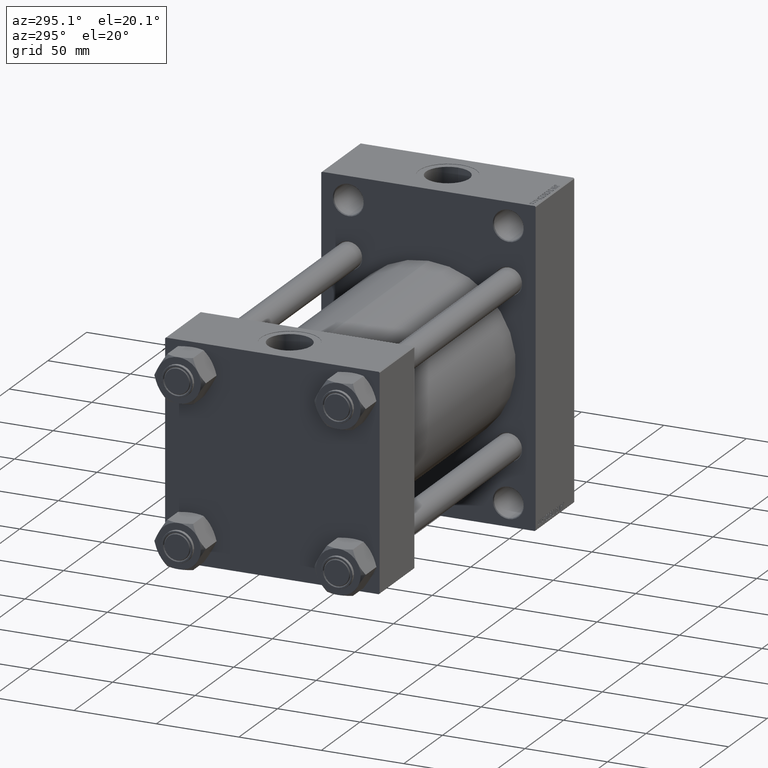
[diagram: clean part render]
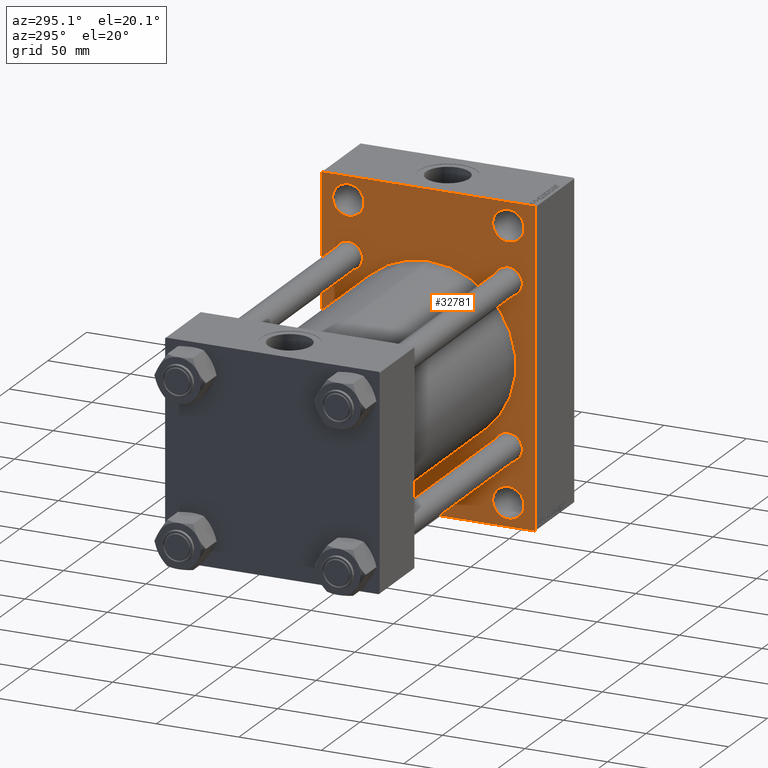
[diagram: same view with one face highlighted and labeled with its STEP entity id]
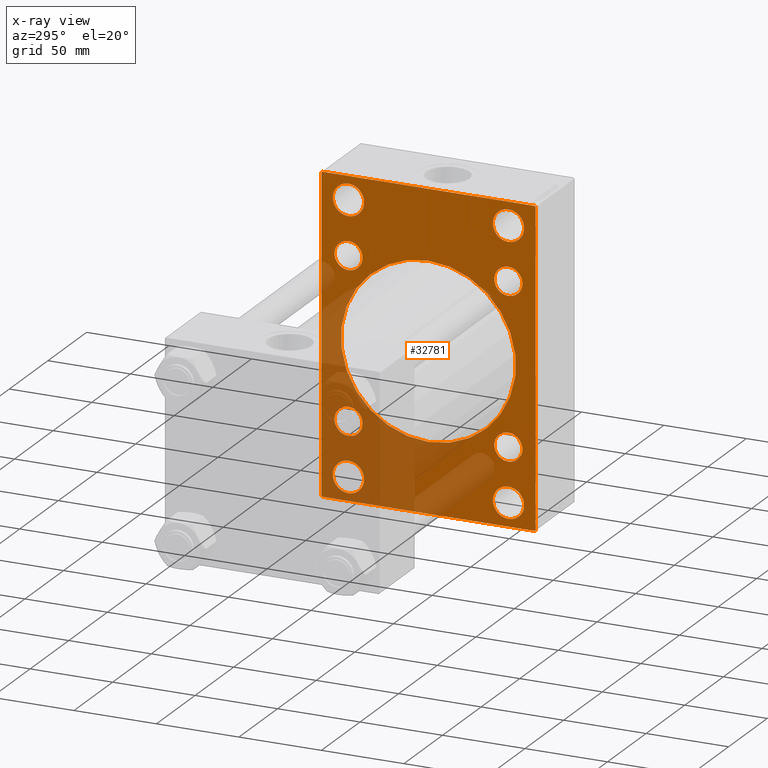
[diagram: x-ray of the same camera — body ghosted, the highlighted face saturated]
A machine part, auxiliary view. The second image highlights one B-rep face of the part: STEP entity #32781.
The next image is the same camera in x-ray: the body ghosted, the highlighted face saturated — about 34% of this face is hidden behind the body in this view.
In plain terms, the highlighted planar face has unit normal (-1, 0, 0).
Its self-contained STEP definition (entity closure, byte-faithful):
#66 = PLANE ( 'NONE',  #21896 ) ;
#522 = CARTESIAN_POINT ( 'NONE',  ( 202.0000000000000000, -48.50000000000000000, 71.49999999999994316 ) ) ;
#717 = EDGE_CURVE ( 'NONE', #2707, #1235, #21013, .T. ) ;
#1067 = EDGE_CURVE ( 'NONE', #33734, #47166, #6343, .T. ) ;
#1154 = DIRECTION ( 'NONE',  ( 0.000000000000000000, 0.000000000000000000, 1.000000000000000000 ) ) ;
#1235 = VERTEX_POINT ( 'NONE', #1373 ) ;
#1373 = CARTESIAN_POINT ( 'NONE',  ( 202.0000000000000000, 48.45000000000000995, -39.95000000000000284 ) ) ;
#1495 = DIRECTION ( 'NONE',  ( 0.000000000000000000, 0.000000000000000000, -1.000000000000000000 ) ) ;
#1510 = ORIENTED_EDGE ( 'NONE', *, *, #8073, .T. ) ;
#1534 = AXIS2_PLACEMENT_3D ( 'NONE', #17695, #14540, #47370 ) ;
#1734 = CARTESIAN_POINT ( 'NONE',  ( 202.0000000000000000, -48.44999999999999574, -48.45000000000003126 ) ) ;
#2065 = EDGE_CURVE ( 'NONE', #4177, #5963, #19398, .T. ) ;
#2171 = DIRECTION ( 'NONE',  ( 1.000000000000000000, -0.000000000000000000, 0.000000000000000000 ) ) ;
#2225 = VERTEX_POINT ( 'NONE', #16586 ) ;
#2446 = DIRECTION ( 'NONE',  ( 0.000000000000000000, 0.000000000000000000, 1.000000000000000000 ) ) ;
#2495 = CARTESIAN_POINT ( 'NONE',  ( 202.0000000000000000, 79.75000000000001421, 79.75000000000001421 ) ) ;
#2645 = DIRECTION ( 'NONE',  ( 0.000000000000000000, 0.000000000000000000, 1.000000000000000000 ) ) ;
#2707 = VERTEX_POINT ( 'NONE', #19620 ) ;
#2881 = DIRECTION ( 'NONE',  ( 0.000000000000000000, -1.000000000000000000, -1.067522139062650425E-16 ) ) ;
#3301 = DIRECTION ( 'NONE',  ( 0.000000000000000000, 0.000000000000000000, 1.000000000000000000 ) ) ;
#3687 = ORIENTED_EDGE ( 'NONE', *, *, #23402, .T. ) ;
#4177 = VERTEX_POINT ( 'NONE', #522 ) ;
#4230 = EDGE_LOOP ( 'NONE', ( #30158, #19047 ) ) ;
#4304 = AXIS2_PLACEMENT_3D ( 'NONE', #38684, #5610, #20346 ) ;
#4309 = AXIS2_PLACEMENT_3D ( 'NONE', #10200, #44714, #11631 ) ;
#4648 = CARTESIAN_POINT ( 'NONE',  ( 202.0000000000000000, -48.50000000000000000, 90.50000000000007105 ) ) ;
#5083 = CIRCLE ( 'NONE', #4309, 8.500000000000007105 ) ;
#5326 = AXIS2_PLACEMENT_3D ( 'NONE', #41561, #8252, #15494 ) ;
#5436 = VERTEX_POINT ( 'NONE', #43416 ) ;
#5564 = LINE ( 'NONE', #13049, #44987 ) ;
#5610 = DIRECTION ( 'NONE',  ( 1.000000000000000000, 0.000000000000000000, 0.000000000000000000 ) ) ;
#5963 = VERTEX_POINT ( 'NONE', #4648 ) ;
#6061 = DIRECTION ( 'NONE',  ( 0.000000000000000000, 0.000000000000000000, 1.000000000000000000 ) ) ;
#6068 = CARTESIAN_POINT ( 'NONE',  ( 202.0000000000000000, -48.44999999999999574, -48.45000000000003126 ) ) ;
#6282 = CARTESIAN_POINT ( 'NONE',  ( 202.0000000000000000, -2.602085213965210642E-15, 0.000000000000000000 ) ) ;
#6343 = CIRCLE ( 'NONE', #40245, 8.500000000000007105 ) ;
#6479 = ORIENTED_EDGE ( 'NONE', *, *, #32196, .T. ) ;
#6528 = CARTESIAN_POINT ( 'NONE',  ( 202.0000000000000000, 48.50000000000000711, -81.00000000000001421 ) ) ;
#6754 = EDGE_CURVE ( 'NONE', #10583, #47644, #27081, .T. ) ;
#6822 = CARTESIAN_POINT ( 'NONE',  ( 202.0000000000000000, -48.50000000000000000, 81.00000000000000000 ) ) ;
#6838 = ORIENTED_EDGE ( 'NONE', *, *, #2065, .T. ) ;
#7179 = DIRECTION ( 'NONE',  ( 0.000000000000000000, 0.000000000000000000, 1.000000000000000000 ) ) ;
#7405 = CARTESIAN_POINT ( 'NONE',  ( 202.0000000000000000, -48.50000000000000000, 81.00000000000000000 ) ) ;
#7550 = DIRECTION ( 'NONE',  ( -1.000000000000000000, 0.000000000000000000, -0.000000000000000000 ) ) ;
#7756 = VERTEX_POINT ( 'NONE', #10442 ) ;
#7798 = FACE_BOUND ( 'NONE', #34818, .T. ) ;
#7914 = DIRECTION ( 'NONE',  ( 1.000000000000000000, -0.000000000000000000, 0.000000000000000000 ) ) ;
#8073 = EDGE_CURVE ( 'NONE', #7756, #5436, #28909, .T. ) ;
#8115 = AXIS2_PLACEMENT_3D ( 'NONE', #1734, #7914, #7179 ) ;
#8252 = DIRECTION ( 'NONE',  ( 1.000000000000000000, -0.000000000000000000, 0.000000000000000000 ) ) ;
#8364 = DIRECTION ( 'NONE',  ( 0.000000000000000000, 0.000000000000000000, 1.000000000000000000 ) ) ;
#8526 = FACE_BOUND ( 'NONE', #20284, .T. ) ;
#8915 = CARTESIAN_POINT ( 'NONE',  ( 202.0000000000000000, 48.50000000000000711, 90.50000000000007105 ) ) ;
#9077 = AXIS2_PLACEMENT_3D ( 'NONE', #35976, #21257, #6061 ) ;
#9121 = EDGE_CURVE ( 'NONE', #2225, #35926, #35561, .T. ) ;
#9430 = CARTESIAN_POINT ( 'NONE',  ( 202.0000000000000000, 64.99999999999998579, -95.00000000000001421 ) ) ;
#9806 = CARTESIAN_POINT ( 'NONE',  ( 202.0000000000000000, -48.49999999999999289, -71.49999999999995737 ) ) ;
#9865 = DIRECTION ( 'NONE',  ( 0.000000000000000000, -0.7071067811865474617, 0.7071067811865474617 ) ) ;
#10064 = CIRCLE ( 'NONE', #45556, 8.500000000000007105 ) ;
#10084 = DIRECTION ( 'NONE',  ( 0.000000000000000000, 0.000000000000000000, 1.000000000000000000 ) ) ;
#10162 = ORIENTED_EDGE ( 'NONE', *, *, #35420, .T. ) ;
#10200 = CARTESIAN_POINT ( 'NONE',  ( 202.0000000000000000, 48.45000000000000995, 48.45000000000001705 ) ) ;
#10442 = CARTESIAN_POINT ( 'NONE',  ( 202.0000000000000000, -48.44999999999999574, -39.95000000000001705 ) ) ;
#10583 = VERTEX_POINT ( 'NONE', #26676 ) ;
#10711 = ORIENTED_EDGE ( 'NONE', *, *, #31790, .T. ) ;
#11631 = DIRECTION ( 'NONE',  ( 0.000000000000000000, 0.000000000000000000, 1.000000000000000000 ) ) ;
#11905 = FACE_BOUND ( 'NONE', #23263, .T. ) ;
#11976 = DIRECTION ( 'NONE',  ( 1.000000000000000000, -0.000000000000000000, 0.000000000000000000 ) ) ;
#12107 = ORIENTED_EDGE ( 'NONE', *, *, #33910, .F. ) ;
#12317 = VERTEX_POINT ( 'NONE', #32342 ) ;
#12331 = EDGE_CURVE ( 'NONE', #12317, #34603, #41442, .T. ) ;
#12456 = DIRECTION ( 'NONE',  ( 1.000000000000000000, -0.000000000000000000, 0.000000000000000000 ) ) ;
#13049 = CARTESIAN_POINT ( 'NONE',  ( 202.0000000000000000, 64.99999999999997158, 94.99999999999997158 ) ) ;
#13073 = CARTESIAN_POINT ( 'NONE',  ( 202.0000000000000000, -65.00000000000001421, 94.99999999999997158 ) ) ;
#13263 = EDGE_CURVE ( 'NONE', #31977, #46188, #17554, .T. ) ;
#13668 = DIRECTION ( 'NONE',  ( 0.000000000000000000, 7.304098846218135653E-17, -1.000000000000000000 ) ) ;
#14076 = DIRECTION ( 'NONE',  ( 1.000000000000000000, -0.000000000000000000, 0.000000000000000000 ) ) ;
#14246 = ORIENTED_EDGE ( 'NONE', *, *, #46861, .T. ) ;
#14536 = CIRCLE ( 'NONE', #26891, 9.500000000000063949 ) ;
#14540 = DIRECTION ( 'NONE',  ( 1.000000000000000000, -0.000000000000000000, 0.000000000000000000 ) ) ;
#14551 = DIRECTION ( 'NONE',  ( 0.000000000000000000, 0.000000000000000000, 1.000000000000000000 ) ) ;
#14822 = EDGE_CURVE ( 'NONE', #1235, #2707, #24507, .T. ) ;
#15310 = AXIS2_PLACEMENT_3D ( 'NONE', #6822, #24472, #39198 ) ;
#15380 = VECTOR ( 'NONE', #20845, 1000.000000000000000 ) ;
#15494 = DIRECTION ( 'NONE',  ( 0.000000000000000000, 0.000000000000000000, 1.000000000000000000 ) ) ;
#15607 = CARTESIAN_POINT ( 'NONE',  ( 202.0000000000000000, 48.45000000000000995, -48.45000000000001705 ) ) ;
#16030 = ORIENTED_EDGE ( 'NONE', *, *, #46979, .T. ) ;
#16116 = VECTOR ( 'NONE', #2881, 1000.000000000000000 ) ;
#16486 = EDGE_CURVE ( 'NONE', #23379, #29303, #39221, .T. ) ;
#16586 = CARTESIAN_POINT ( 'NONE',  ( 202.0000000000000000, 64.50000000000008527, 94.99999999999997158 ) ) ;
#16925 = DIRECTION ( 'NONE',  ( 0.000000000000000000, 0.000000000000000000, 1.000000000000000000 ) ) ;
#17387 = CARTESIAN_POINT ( 'NONE',  ( 202.0000000000000000, 48.50000000000000711, 81.00000000000000000 ) ) ;
#17554 = CIRCLE ( 'NONE', #9077, 8.500000000000007105 ) ;
#17695 = CARTESIAN_POINT ( 'NONE',  ( 202.0000000000000000, -48.44999999999999574, 48.45000000000003126 ) ) ;
#17702 = CARTESIAN_POINT ( 'NONE',  ( 202.0000000000000000, 48.50000000000000711, 81.00000000000000000 ) ) ;
#17787 = CIRCLE ( 'NONE', #22392, 9.500000000000063949 ) ;
#17899 = VERTEX_POINT ( 'NONE', #8915 ) ;
#18135 = DIRECTION ( 'NONE',  ( -0.000000000000000000, 0.7071067811865769936, 0.7071067811865181518 ) ) ;
#18520 = DIRECTION ( 'NONE',  ( 1.000000000000000000, -0.000000000000000000, 0.000000000000000000 ) ) ;
#18556 = CARTESIAN_POINT ( 'NONE',  ( 202.0000000000000000, 48.45000000000000995, 39.95000000000000284 ) ) ;
#18877 = EDGE_CURVE ( 'NONE', #47166, #33734, #40068, .T. ) ;
#19047 = ORIENTED_EDGE ( 'NONE', *, *, #40111, .T. ) ;
#19395 = FACE_BOUND ( 'NONE', #37473, .T. ) ;
#19398 = CIRCLE ( 'NONE', #42509, 9.500000000000063949 ) ;
#19620 = CARTESIAN_POINT ( 'NONE',  ( 202.0000000000000000, 48.45000000000000995, -56.95000000000002416 ) ) ;
#19835 = VERTEX_POINT ( 'NONE', #32725 ) ;
#20229 = CARTESIAN_POINT ( 'NONE',  ( 202.0000000000000000, -64.50000000000002842, 94.99999999999997158 ) ) ;
#20265 = CARTESIAN_POINT ( 'NONE',  ( 202.0000000000000000, -48.44999999999999574, 48.45000000000003126 ) ) ;
#20284 = EDGE_LOOP ( 'NONE', ( #24011, #42724 ) ) ;
#20346 = DIRECTION ( 'NONE',  ( 0.000000000000000000, 0.000000000000000000, -1.000000000000000000 ) ) ;
#20777 = ORIENTED_EDGE ( 'NONE', *, *, #44563, .T. ) ;
#20845 = DIRECTION ( 'NONE',  ( -0.000000000000000000, -0.7071067811865573427, -0.7071067811865378028 ) ) ;
#21013 = CIRCLE ( 'NONE', #36383, 8.500000000000007105 ) ;
#21020 = EDGE_CURVE ( 'NONE', #43782, #19835, #27603, .T. ) ;
#21257 = DIRECTION ( 'NONE',  ( 1.000000000000000000, -0.000000000000000000, 0.000000000000000000 ) ) ;
#21439 = AXIS2_PLACEMENT_3D ( 'NONE', #15607, #11976, #8364 ) ;
#21668 = VERTEX_POINT ( 'NONE', #24104 ) ;
#21896 = AXIS2_PLACEMENT_3D ( 'NONE', #36996, #7550, #37972 ) ;
#22356 = VECTOR ( 'NONE', #13668, 1000.000000000000000 ) ;
#22392 = AXIS2_PLACEMENT_3D ( 'NONE', #6528, #27457, #1154 ) ;
#22523 = FACE_BOUND ( 'NONE', #26054, .T. ) ;
#22943 = DIRECTION ( 'NONE',  ( 1.000000000000000000, -0.000000000000000000, 0.000000000000000000 ) ) ;
#23097 = EDGE_CURVE ( 'NONE', #26195, #47644, #43174, .T. ) ;
#23256 = FACE_BOUND ( 'NONE', #29907, .T. ) ;
#23263 = EDGE_LOOP ( 'NONE', ( #25823, #10162 ) ) ;
#23379 = VERTEX_POINT ( 'NONE', #9806 ) ;
#23402 = EDGE_CURVE ( 'NONE', #35926, #43782, #24764, .T. ) ;
#23874 = EDGE_CURVE ( 'NONE', #5436, #7756, #10064, .T. ) ;
#24011 = ORIENTED_EDGE ( 'NONE', *, *, #14822, .T. ) ;
#24104 = CARTESIAN_POINT ( 'NONE',  ( 202.0000000000000000, 48.50000000000000711, 71.49999999999994316 ) ) ;
#24158 = EDGE_CURVE ( 'NONE', #44631, #33062, #17787, .T. ) ;
#24251 = DIRECTION ( 'NONE',  ( 0.000000000000000000, 0.000000000000000000, 1.000000000000000000 ) ) ;
#24254 = VERTEX_POINT ( 'NONE', #20229 ) ;
#24472 = DIRECTION ( 'NONE',  ( 1.000000000000000000, -0.000000000000000000, 0.000000000000000000 ) ) ;
#24507 = CIRCLE ( 'NONE', #21439, 8.500000000000007105 ) ;
#24764 = LINE ( 'NONE', #39713, #22356 ) ;
#25823 = ORIENTED_EDGE ( 'NONE', *, *, #13263, .T. ) ;
#25857 = VECTOR ( 'NONE', #31938, 1000.000000000000114 ) ;
#25949 = EDGE_LOOP ( 'NONE', ( #14246, #47159, #33693, #20777, #12107, #45301, #3687, #41488 ) ) ;
#26054 = EDGE_LOOP ( 'NONE', ( #36223, #34808 ) ) ;
#26058 = DIRECTION ( 'NONE',  ( 0.000000000000000000, 0.000000000000000000, 1.000000000000000000 ) ) ;
#26195 = VERTEX_POINT ( 'NONE', #26290 ) ;
#26290 = CARTESIAN_POINT ( 'NONE',  ( 202.0000000000000000, -64.50000000000001421, -95.00000000000002842 ) ) ;
#26315 = ORIENTED_EDGE ( 'NONE', *, *, #16486, .T. ) ;
#26676 = CARTESIAN_POINT ( 'NONE',  ( 202.0000000000000000, -65.00000000000001421, 94.50000000000002842 ) ) ;
#26891 = AXIS2_PLACEMENT_3D ( 'NONE', #17387, #28244, #16925 ) ;
#27081 = LINE ( 'NONE', #13073, #29669 ) ;
#27196 = AXIS2_PLACEMENT_3D ( 'NONE', #39801, #2171, #2645 ) ;
#27457 = DIRECTION ( 'NONE',  ( 1.000000000000000000, -0.000000000000000000, 0.000000000000000000 ) ) ;
#27567 = DIRECTION ( 'NONE',  ( 1.000000000000000000, -0.000000000000000000, 0.000000000000000000 ) ) ;
#27603 = LINE ( 'NONE', #46663, #15380 ) ;
#27770 = DIRECTION ( 'NONE',  ( 0.000000000000000000, -1.000000000000000000, 0.000000000000000000 ) ) ;
#27985 = AXIS2_PLACEMENT_3D ( 'NONE', #33547, #22943, #26058 ) ;
#28244 = DIRECTION ( 'NONE',  ( 1.000000000000000000, -0.000000000000000000, 0.000000000000000000 ) ) ;
#28490 = DIRECTION ( 'NONE',  ( 0.000000000000000000, 0.000000000000000000, -1.000000000000000000 ) ) ;
#28728 = EDGE_CURVE ( 'NONE', #29303, #23379, #41849, .T. ) ;
#28792 = CIRCLE ( 'NONE', #39618, 9.500000000000063949 ) ;
#28909 = CIRCLE ( 'NONE', #8115, 8.500000000000007105 ) ;
#29303 = VERTEX_POINT ( 'NONE', #45555 ) ;
#29669 = VECTOR ( 'NONE', #1495, 1000.000000000000000 ) ;
#29705 = CARTESIAN_POINT ( 'NONE',  ( 202.0000000000000000, -48.44999999999999574, 39.95000000000001705 ) ) ;
#29907 = EDGE_LOOP ( 'NONE', ( #42421, #6479 ) ) ;
#30158 = ORIENTED_EDGE ( 'NONE', *, *, #12331, .T. ) ;
#30399 = CIRCLE ( 'NONE', #27985, 9.500000000000063949 ) ;
#30490 = FACE_BOUND ( 'NONE', #43317, .T. ) ;
#31790 = EDGE_CURVE ( 'NONE', #21668, #17899, #28792, .T. ) ;
#31938 = DIRECTION ( 'NONE',  ( 0.000000000000000000, 0.7071067811865474617, -0.7071067811865474617 ) ) ;
#31977 = VERTEX_POINT ( 'NONE', #38198 ) ;
#32196 = EDGE_CURVE ( 'NONE', #33062, #44631, #30399, .T. ) ;
#32342 = CARTESIAN_POINT ( 'NONE',  ( 202.0000000000000000, -2.602085213965210642E-15, 53.00000000000000711 ) ) ;
#32725 = CARTESIAN_POINT ( 'NONE',  ( 202.0000000000000000, 64.49999999999998579, -95.00000000000001421 ) ) ;
#32781 = ADVANCED_FACE ( 'NONE', ( #40616, #7798, #23256, #30490, #22523, #11905, #8526, #19395, #37727, #33375 ), #66, .T. ) ;
#33062 = VERTEX_POINT ( 'NONE', #35005 ) ;
#33375 = FACE_OUTER_BOUND ( 'NONE', #25949, .T. ) ;
#33547 = CARTESIAN_POINT ( 'NONE',  ( 202.0000000000000000, 48.50000000000000711, -81.00000000000001421 ) ) ;
#33693 = ORIENTED_EDGE ( 'NONE', *, *, #6754, .F. ) ;
#33734 = VERTEX_POINT ( 'NONE', #29705 ) ;
#33910 = EDGE_CURVE ( 'NONE', #2225, #24254, #5564, .T. ) ;
#34276 = EDGE_LOOP ( 'NONE', ( #35372, #6838 ) ) ;
#34577 = CIRCLE ( 'NONE', #15310, 9.500000000000063949 ) ;
#34603 = VERTEX_POINT ( 'NONE', #35547 ) ;
#34808 = ORIENTED_EDGE ( 'NONE', *, *, #1067, .T. ) ;
#34818 = EDGE_LOOP ( 'NONE', ( #26315, #42142 ) ) ;
#34976 = DIRECTION ( 'NONE',  ( 1.000000000000000000, -0.000000000000000000, 0.000000000000000000 ) ) ;
#35005 = CARTESIAN_POINT ( 'NONE',  ( 202.0000000000000000, 48.50000000000000711, -90.50000000000008527 ) ) ;
#35159 = CIRCLE ( 'NONE', #4304, 53.00000000000000711 ) ;
#35355 = CARTESIAN_POINT ( 'NONE',  ( 202.0000000000000000, 48.45000000000000995, -48.45000000000001705 ) ) ;
#35372 = ORIENTED_EDGE ( 'NONE', *, *, #45393, .T. ) ;
#35420 = EDGE_CURVE ( 'NONE', #46188, #31977, #5083, .T. ) ;
#35547 = CARTESIAN_POINT ( 'NONE',  ( 202.0000000000000000, 3.888542821515762466E-15, -53.00000000000000711 ) ) ;
#35561 = LINE ( 'NONE', #2495, #25857 ) ;
#35926 = VERTEX_POINT ( 'NONE', #47253 ) ;
#35976 = CARTESIAN_POINT ( 'NONE',  ( 202.0000000000000000, 48.45000000000000995, 48.45000000000001705 ) ) ;
#36223 = ORIENTED_EDGE ( 'NONE', *, *, #18877, .T. ) ;
#36383 = AXIS2_PLACEMENT_3D ( 'NONE', #35355, #12456, #24251 ) ;
#36470 = CARTESIAN_POINT ( 'NONE',  ( 202.0000000000000000, -79.74999999999732836, 79.75000000000395062 ) ) ;
#36996 = CARTESIAN_POINT ( 'NONE',  ( 202.0000000000000000, 0.000000000000000000, 0.000000000000000000 ) ) ;
#37274 = CARTESIAN_POINT ( 'NONE',  ( 202.0000000000000000, -65.00000000000001421, -94.50000000000002842 ) ) ;
#37473 = EDGE_LOOP ( 'NONE', ( #1510, #45128 ) ) ;
#37727 = FACE_BOUND ( 'NONE', #4230, .T. ) ;
#37972 = DIRECTION ( 'NONE',  ( -0.000000000000000000, 0.000000000000000000, 1.000000000000000000 ) ) ;
#38198 = CARTESIAN_POINT ( 'NONE',  ( 202.0000000000000000, 48.45000000000000995, 56.95000000000002416 ) ) ;
#38684 = CARTESIAN_POINT ( 'NONE',  ( 202.0000000000000000, -2.602085213965210642E-15, 0.000000000000000000 ) ) ;
#39198 = DIRECTION ( 'NONE',  ( 0.000000000000000000, 0.000000000000000000, 1.000000000000000000 ) ) ;
#39221 = CIRCLE ( 'NONE', #5326, 9.500000000000063949 ) ;
#39618 = AXIS2_PLACEMENT_3D ( 'NONE', #17702, #14076, #14551 ) ;
#39713 = CARTESIAN_POINT ( 'NONE',  ( 202.0000000000000000, 64.99999999999997158, 94.99999999999997158 ) ) ;
#39801 = CARTESIAN_POINT ( 'NONE',  ( 202.0000000000000000, -48.49999999999999289, -81.00000000000001421 ) ) ;
#39821 = DIRECTION ( 'NONE',  ( 1.000000000000000000, 0.000000000000000000, 0.000000000000000000 ) ) ;
#40068 = CIRCLE ( 'NONE', #1534, 8.500000000000007105 ) ;
#40100 = VECTOR ( 'NONE', #9865, 1000.000000000000114 ) ;
#40111 = EDGE_CURVE ( 'NONE', #34603, #12317, #35159, .T. ) ;
#40245 = AXIS2_PLACEMENT_3D ( 'NONE', #20265, #34976, #10084 ) ;
#40616 = FACE_BOUND ( 'NONE', #34276, .T. ) ;
#41442 = CIRCLE ( 'NONE', #43733, 53.00000000000000711 ) ;
#41488 = ORIENTED_EDGE ( 'NONE', *, *, #21020, .T. ) ;
#41561 = CARTESIAN_POINT ( 'NONE',  ( 202.0000000000000000, -48.49999999999999289, -81.00000000000001421 ) ) ;
#41849 = CIRCLE ( 'NONE', #27196, 9.500000000000063949 ) ;
#42142 = ORIENTED_EDGE ( 'NONE', *, *, #28728, .T. ) ;
#42421 = ORIENTED_EDGE ( 'NONE', *, *, #24158, .T. ) ;
#42509 = AXIS2_PLACEMENT_3D ( 'NONE', #7405, #18520, #3301 ) ;
#42706 = CARTESIAN_POINT ( 'NONE',  ( 202.0000000000000000, -79.75000000000001421, -79.75000000000001421 ) ) ;
#42724 = ORIENTED_EDGE ( 'NONE', *, *, #717, .T. ) ;
#42917 = CARTESIAN_POINT ( 'NONE',  ( 202.0000000000000000, -48.44999999999999574, 56.95000000000003837 ) ) ;
#42976 = LINE ( 'NONE', #9430, #16116 ) ;
#43174 = LINE ( 'NONE', #42706, #40100 ) ;
#43317 = EDGE_LOOP ( 'NONE', ( #16030, #10711 ) ) ;
#43416 = CARTESIAN_POINT ( 'NONE',  ( 202.0000000000000000, -48.44999999999999574, -56.95000000000003837 ) ) ;
#43430 = CARTESIAN_POINT ( 'NONE',  ( 202.0000000000000000, 64.99999999999998579, -94.50000000000002842 ) ) ;
#43733 = AXIS2_PLACEMENT_3D ( 'NONE', #6282, #39821, #28490 ) ;
#43782 = VERTEX_POINT ( 'NONE', #43430 ) ;
#44563 = EDGE_CURVE ( 'NONE', #10583, #24254, #47349, .T. ) ;
#44631 = VERTEX_POINT ( 'NONE', #44945 ) ;
#44714 = DIRECTION ( 'NONE',  ( 1.000000000000000000, -0.000000000000000000, 0.000000000000000000 ) ) ;
#44945 = CARTESIAN_POINT ( 'NONE',  ( 202.0000000000000000, 48.50000000000000711, -71.49999999999995737 ) ) ;
#44987 = VECTOR ( 'NONE', #27770, 1000.000000000000000 ) ;
#45128 = ORIENTED_EDGE ( 'NONE', *, *, #23874, .T. ) ;
#45301 = ORIENTED_EDGE ( 'NONE', *, *, #9121, .T. ) ;
#45393 = EDGE_CURVE ( 'NONE', #5963, #4177, #34577, .T. ) ;
#45555 = CARTESIAN_POINT ( 'NONE',  ( 202.0000000000000000, -48.49999999999999289, -90.50000000000008527 ) ) ;
#45556 = AXIS2_PLACEMENT_3D ( 'NONE', #6068, #27567, #2446 ) ;
#46188 = VERTEX_POINT ( 'NONE', #18556 ) ;
#46663 = CARTESIAN_POINT ( 'NONE',  ( 202.0000000000000000, 79.74999999999913314, -79.75000000000132161 ) ) ;
#46861 = EDGE_CURVE ( 'NONE', #19835, #26195, #42976, .T. ) ;
#46868 = VECTOR ( 'NONE', #18135, 1000.000000000000000 ) ;
#46979 = EDGE_CURVE ( 'NONE', #17899, #21668, #14536, .T. ) ;
#47159 = ORIENTED_EDGE ( 'NONE', *, *, #23097, .T. ) ;
#47166 = VERTEX_POINT ( 'NONE', #42917 ) ;
#47253 = CARTESIAN_POINT ( 'NONE',  ( 202.0000000000000000, 64.99999999999997158, 94.50000000000008527 ) ) ;
#47349 = LINE ( 'NONE', #36470, #46868 ) ;
#47370 = DIRECTION ( 'NONE',  ( 0.000000000000000000, 0.000000000000000000, 1.000000000000000000 ) ) ;
#47644 = VERTEX_POINT ( 'NONE', #37274 ) ;